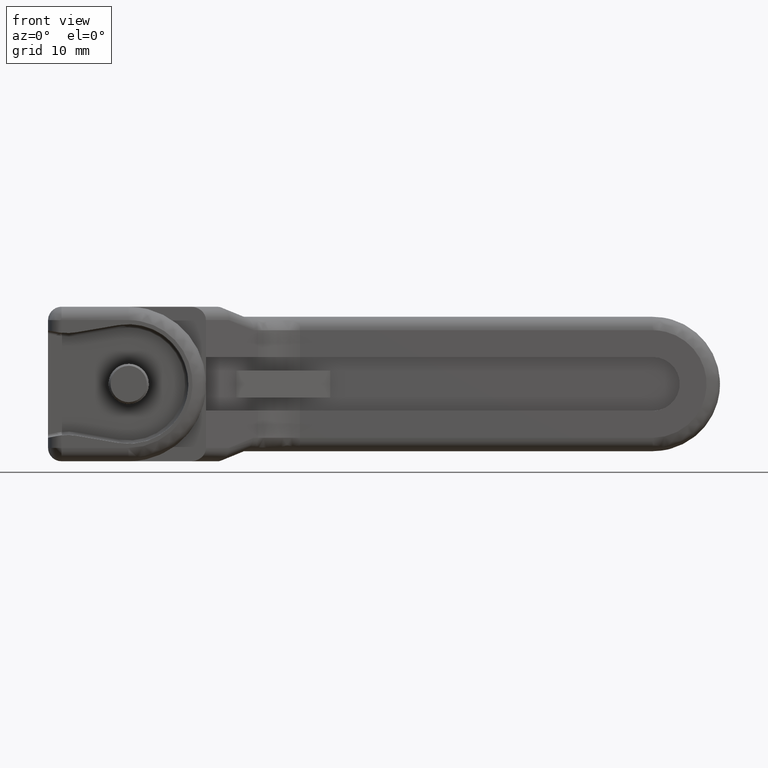
[diagram: clean part render]
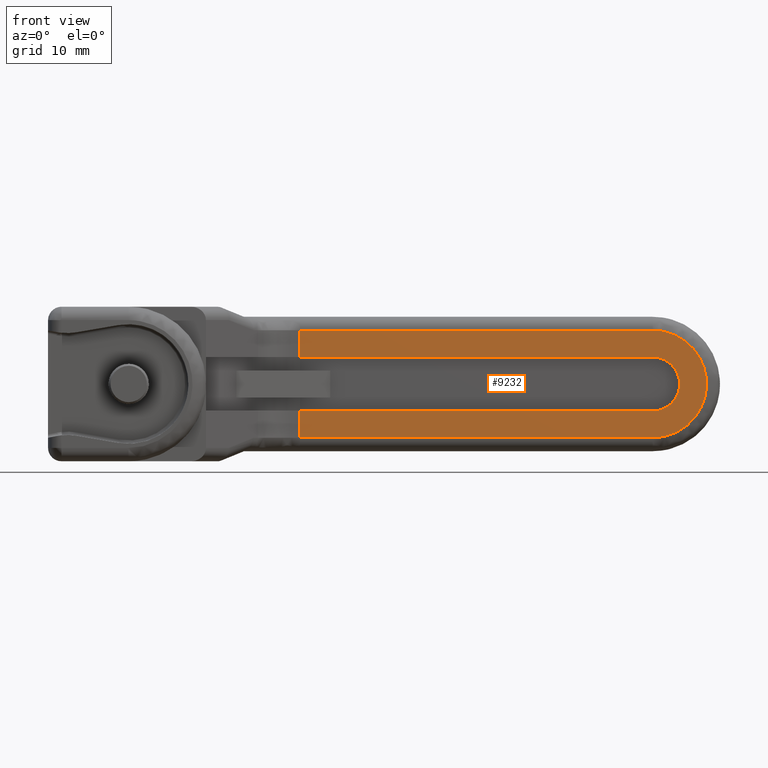
[diagram: same view with one face highlighted and labeled with its STEP entity id]
A machine part, front view. The second image highlights one B-rep face of the part: STEP entity #9232.
In plain terms, the highlighted face is a freeform B-spline surface patch.
Its self-contained STEP definition (entity closure, byte-faithful):
#6542=CARTESIAN_POINT('',(23.000001089999699,-25.499951004805151,8.000000738483390));
#6543=VERTEX_POINT('',#6542);
#6648=CARTESIAN_POINT('',(23.000001089999699,-77.999953704801300,8.000000738483410));
#6649=VERTEX_POINT('',#6648);
#6671=CARTESIAN_POINT('',(23.000001089999699,-77.999953704801300,8.000000738483410));
#6672=CARTESIAN_POINT('',(23.000001089999699,-25.499951004805151,8.000000738483390));
#6673=QUASI_UNIFORM_CURVE('',1,(#6671,#6672),.UNSPECIFIED.,.F.,.U.);
#6674=EDGE_CURVE('',#6649,#6543,#6673,.T.);
#6702=CARTESIAN_POINT('',(23.000001089999699,-77.999953704801300,-8.000000211465430));
#6703=VERTEX_POINT('',#6702);
#6737=CARTESIAN_POINT('',(23.000001089999699,-77.999953704801300,-8.000000211465427));
#6738=CARTESIAN_POINT('',(23.000001089999692,-85.999954179775713,-8.000000211465427));
#6739=CARTESIAN_POINT('',(23.000001089999699,-85.999954179775713,0.000000263508992));
#6740=CARTESIAN_POINT('',(23.000001089999692,-85.999954179775713,8.000000738483411));
#6741=CARTESIAN_POINT('',(23.000001089999699,-77.999953704801300,8.000000738483411));
#6749=(BOUNDED_CURVE()B_SPLINE_CURVE(2,(#6737,#6738,#6739,#6740,#6741),.UNSPECIFIED.,.F.,.U.)B_SPLINE_CURVE_WITH_KNOTS((3,2,3),(0.0,0.500000000000000,1.0),.UNSPECIFIED.)CURVE()GEOMETRIC_REPRESENTATION_ITEM()RATIONAL_B_SPLINE_CURVE((1.0,0.707106781186548,1.0,0.707106781186548,1.0))REPRESENTATION_ITEM(''));
#6750=EDGE_CURVE('',#6703,#6649,#6749,.T.);
#6769=CARTESIAN_POINT('',(23.000001089999699,-25.499951004805151,-8.000000738483390));
#6770=VERTEX_POINT('',#6769);
#6792=CARTESIAN_POINT('',(23.000001089999699,-25.499951004805151,-8.000000738483390));
#6793=CARTESIAN_POINT('',(23.000001089999699,-77.999953704801300,-8.000000211465430));
#6794=QUASI_UNIFORM_CURVE('',1,(#6792,#6793),.UNSPECIFIED.,.F.,.U.);
#6795=EDGE_CURVE('',#6770,#6703,#6794,.T.);
#8618=CARTESIAN_POINT('',(23.000001089999699,-77.999954179775699,-4.000000453498800));
#8619=VERTEX_POINT('',#8618);
#8627=CARTESIAN_POINT('',(23.000001089999699,-77.999954179775699,4.000000453498800));
#8628=VERTEX_POINT('',#8627);
#8629=CARTESIAN_POINT('',(23.000001089999699,-77.999954179775699,4.000000453498814));
#8630=CARTESIAN_POINT('',(23.000001089999692,-81.999954179775727,4.000000453498814));
#8631=CARTESIAN_POINT('',(23.000001089999699,-81.999954179775713,0.000000453498813));
#8632=CARTESIAN_POINT('',(23.000001089999692,-81.999954179775727,-3.999999546501186));
#8633=CARTESIAN_POINT('',(23.000001089999699,-77.999954179775699,-4.000000453498800));
#8641=(BOUNDED_CURVE()B_SPLINE_CURVE(2,(#8629,#8630,#8631,#8632,#8633),.UNSPECIFIED.,.F.,.U.)B_SPLINE_CURVE_WITH_KNOTS((3,2,3),(0.0,0.500000000000000,1.0),.UNSPECIFIED.)CURVE()GEOMETRIC_REPRESENTATION_ITEM()RATIONAL_B_SPLINE_CURVE((1.0,0.707106781186548,1.0,0.707106781186548,1.0))REPRESENTATION_ITEM(''));
#8642=EDGE_CURVE('',#8628,#8619,#8641,.T.);
#8782=CARTESIAN_POINT('',(23.000001089999699,-25.499951214155899,-4.000000453498800));
#8783=VERTEX_POINT('',#8782);
#8784=CARTESIAN_POINT('',(23.000001089999699,-77.999954179775699,-4.000000453498800));
#8785=CARTESIAN_POINT('',(23.000001089999699,-25.499951214155899,-4.000000453498800));
#8786=QUASI_UNIFORM_CURVE('',1,(#8784,#8785),.UNSPECIFIED.,.F.,.U.);
#8787=EDGE_CURVE('',#8619,#8783,#8786,.T.);
#8862=CARTESIAN_POINT('',(23.000001089999699,-25.499951214155899,4.000000453498800));
#8863=VERTEX_POINT('',#8862);
#8864=CARTESIAN_POINT('',(23.000001089999699,-77.999954179775699,4.000000453498800));
#8865=CARTESIAN_POINT('',(23.000001089999699,-25.499951214155899,4.000000453498800));
#8866=QUASI_UNIFORM_CURVE('',1,(#8864,#8865),.UNSPECIFIED.,.F.,.U.);
#8867=EDGE_CURVE('',#8628,#8863,#8866,.T.);
#9122=CARTESIAN_POINT('',(23.000001089999699,-25.499951004805151,8.000000738483390));
#9123=CARTESIAN_POINT('',(23.000001089999699,-25.499951214155899,4.000000453498800));
#9124=QUASI_UNIFORM_CURVE('',1,(#9122,#9123),.UNSPECIFIED.,.F.,.U.);
#9125=EDGE_CURVE('',#6543,#8863,#9124,.T.);
#9213=CARTESIAN_POINT('',(23.000001089999699,-89.021929221104699,-8.799201081639904));
#9214=CARTESIAN_POINT('',(23.000001089999699,-89.021929221104699,8.799201224691085));
#9215=CARTESIAN_POINT('',(23.000001089999699,-22.477974340739578,-8.799201081639904));
#9216=CARTESIAN_POINT('',(23.000001089999699,-22.477974340739578,8.799201224691085));
#9217=B_SPLINE_SURFACE_WITH_KNOTS('',1,1,((#9213,#9215),(#9214,#9216)),.UNSPECIFIED.,.F.,.F.,.U.,(2,2),(2,2),(0.0,17.598402306330989),(0.0,66.543954880365121),.UNSPECIFIED.);
#9218=ORIENTED_EDGE('',*,*,#6750,.T.);
#9219=ORIENTED_EDGE('',*,*,#6674,.T.);
#9220=ORIENTED_EDGE('',*,*,#9125,.T.);
#9221=ORIENTED_EDGE('',*,*,#8867,.F.);
#9222=ORIENTED_EDGE('',*,*,#8642,.T.);
#9223=ORIENTED_EDGE('',*,*,#8787,.T.);
#9224=CARTESIAN_POINT('',(23.000001089999699,-25.499951214155899,-4.000000453498800));
#9225=CARTESIAN_POINT('',(23.000001089999699,-25.499951004805151,-8.000000738483390));
#9226=QUASI_UNIFORM_CURVE('',1,(#9224,#9225),.UNSPECIFIED.,.F.,.U.);
#9227=EDGE_CURVE('',#8783,#6770,#9226,.T.);
#9228=ORIENTED_EDGE('',*,*,#9227,.T.);
#9229=ORIENTED_EDGE('',*,*,#6795,.T.);
#9230=EDGE_LOOP('',(#9218,#9219,#9220,#9221,#9222,#9223,#9228,#9229));
#9231=FACE_OUTER_BOUND('',#9230,.T.);
#9232=ADVANCED_FACE('',(#9231),#9217,.T.);